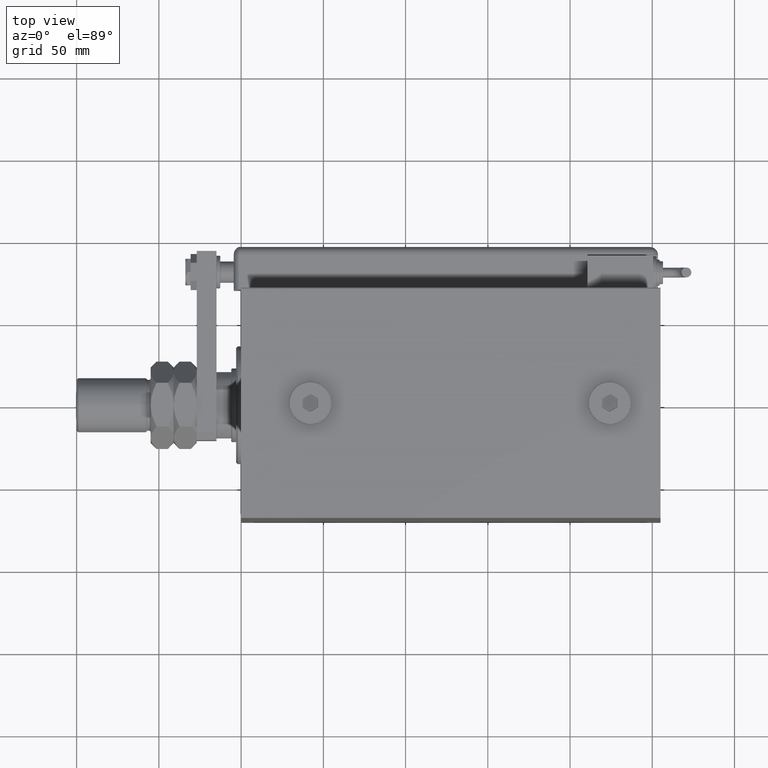
[diagram: clean part render]
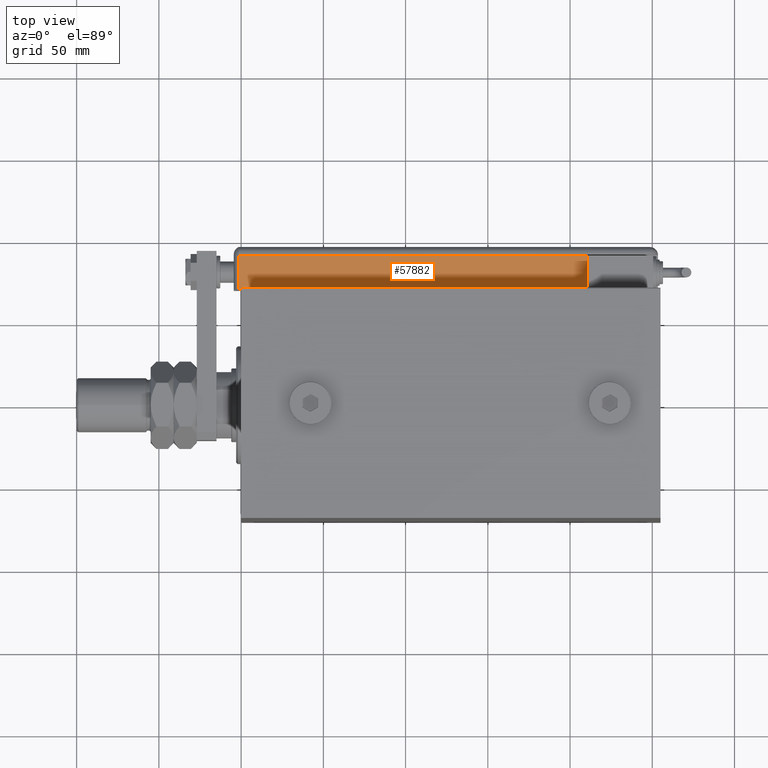
[diagram: same view with one face highlighted and labeled with its STEP entity id]
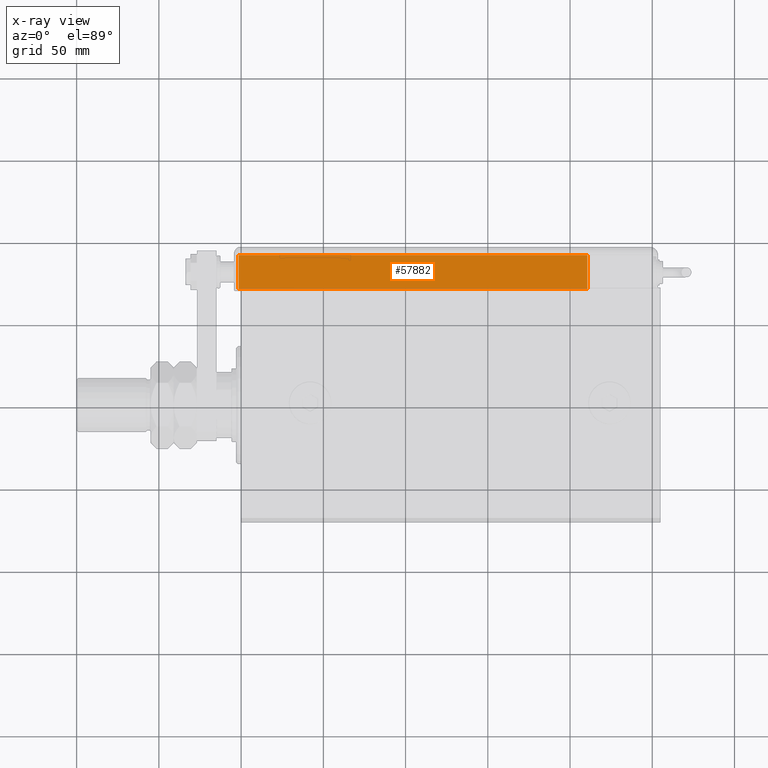
[diagram: x-ray of the same camera — body ghosted, the highlighted face saturated]
A machine part, top view. The second image highlights one B-rep face of the part: STEP entity #57882.
The next image is the same camera in x-ray: the body ghosted, the highlighted face saturated — about 4% of this face is hidden behind the body in this view.
In plain terms, the highlighted planar face has unit normal (-0, -0, -1).
Its self-contained STEP definition (entity closure, byte-faithful):
#431 = VECTOR ( 'NONE', #60589, 1000.000000000000000 ) ;
#3775 = ORIENTED_EDGE ( 'NONE', *, *, #8178, .T. ) ;
#4389 = VERTEX_POINT ( 'NONE', #34986 ) ;
#4595 = DIRECTION ( 'NONE',  ( -0.000000000000000000, 1.000000000000000000, -0.000000000000000000 ) ) ;
#5864 = CARTESIAN_POINT ( 'NONE',  ( 28.99999999999999645, 25.79999999999998295, 255.0000000000000000 ) ) ;
#7637 = VERTEX_POINT ( 'NONE', #15325 ) ;
#8178 = EDGE_CURVE ( 'NONE', #55704, #7637, #27418, .T. ) ;
#8250 = DIRECTION ( 'NONE',  ( -0.000000000000000000, -0.000000000000000000, -1.000000000000000000 ) ) ;
#13607 = ORIENTED_EDGE ( 'NONE', *, *, #25372, .F. ) ;
#15325 = CARTESIAN_POINT ( 'NONE',  ( 28.99999999999999645, 20.79999999999998295, 255.0000000000000000 ) ) ;
#18056 = ORIENTED_EDGE ( 'NONE', *, *, #42553, .F. ) ;
#19827 = CARTESIAN_POINT ( 'NONE',  ( 28.99999999999999645, 25.79999999999998295, 255.0000000000000000 ) ) ;
#20167 = AXIS2_PLACEMENT_3D ( 'NONE', #5864, #54461, #54774 ) ;
#20171 = FACE_OUTER_BOUND ( 'NONE', #57749, .T. ) ;
#21403 = DIRECTION ( 'NONE',  ( -0.000000000000000000, -0.000000000000000000, 1.000000000000000000 ) ) ;
#22024 = CARTESIAN_POINT ( 'NONE',  ( 28.99999999999999645, 20.79999999999998295, 255.0000000000000000 ) ) ;
#25372 = EDGE_CURVE ( 'NONE', #4389, #7637, #48106, .T. ) ;
#27418 = LINE ( 'NONE', #22024, #44927 ) ;
#30637 = VERTEX_POINT ( 'NONE', #58571 ) ;
#31086 = CARTESIAN_POINT ( 'NONE',  ( 28.99999999999999645, 0.000000000000000000, 43.00000000000000000 ) ) ;
#34302 = VECTOR ( 'NONE', #4595, 1000.000000000000000 ) ;
#34414 = VECTOR ( 'NONE', #8250, 1000.000000000000000 ) ;
#34986 = CARTESIAN_POINT ( 'NONE',  ( 28.99999999999999645, -9.421223957302265857E-15, 255.0000000000000000 ) ) ;
#35547 = ORIENTED_EDGE ( 'NONE', *, *, #62334, .T. ) ;
#37816 = LINE ( 'NONE', #51769, #34414 ) ;
#40188 = PLANE ( 'NONE',  #20167 ) ;
#42553 = EDGE_CURVE ( 'NONE', #55704, #30637, #55823, .T. ) ;
#44927 = VECTOR ( 'NONE', #21403, 1000.000000000000000 ) ;
#47540 = CARTESIAN_POINT ( 'NONE',  ( 28.99999999999999645, 20.79999999999998295, 43.00000000000000000 ) ) ;
#48106 = LINE ( 'NONE', #19827, #34302 ) ;
#51769 = CARTESIAN_POINT ( 'NONE',  ( 28.99999999999999645, -9.421223957302265857E-15, 255.0000000000000000 ) ) ;
#54461 = DIRECTION ( 'NONE',  ( -1.000000000000000000, 0.000000000000000000, 0.000000000000000000 ) ) ;
#54774 = DIRECTION ( 'NONE',  ( 0.000000000000000000, 0.000000000000000000, 1.000000000000000000 ) ) ;
#55704 = VERTEX_POINT ( 'NONE', #47540 ) ;
#55823 = LINE ( 'NONE', #31086, #431 ) ;
#57749 = EDGE_LOOP ( 'NONE', ( #35547, #18056, #3775, #13607 ) ) ;
#57882 = ADVANCED_FACE ( 'NONE', ( #20171 ), #40188, .F. ) ;
#58571 = CARTESIAN_POINT ( 'NONE',  ( 28.99999999999999645, 0.000000000000000000, 43.00000000000000000 ) ) ;
#60589 = DIRECTION ( 'NONE',  ( -0.000000000000000000, -1.000000000000000000, -0.000000000000000000 ) ) ;
#62334 = EDGE_CURVE ( 'NONE', #4389, #30637, #37816, .T. ) ;